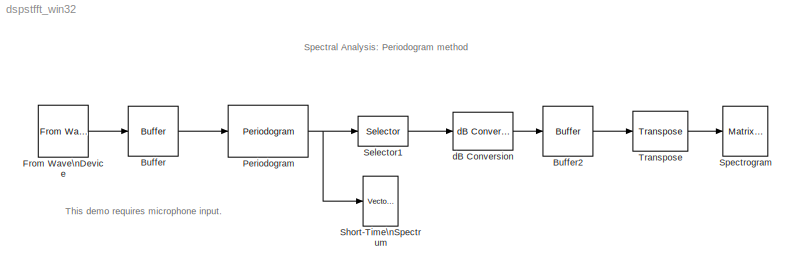
MODEL dspstfft_win32
KIND model
CONFIG AbsTol = auto
CONFIG FixedStep = auto
CONFIG MaxStep = auto
CONFIG MinStep = auto
CONFIG RelTol = 1e-3
CONFIG Solver = FixedStepDiscrete
CONFIG SolverMode = Auto
CONFIG StartTime = 0.0
CONFIG StopTime = inf
BLOCK [Reference] Buffer  REF=dspbuff3/Buffer
  N = 128
  Ports = [1, 1]
  SourceBlock = dspbuff3/Buffer
  SourceType = Buffer
  V = 48
  ic = 0
BLOCK [Reference] Buffer2  REF=dspbuff3/Buffer
  N = 48
  Ports = [1, 1]
  SourceBlock = dspbuff3/Buffer
  SourceType = Buffer
  V = 46
  ic = -70
BLOCK [Reference] From Wave\nDevice  REF=dspwin32/From Wave\nDevice
  Ports = [0, 1]
  QueueDuration = 1
  SampleRate = 8000
  SampleWidth = 16
  SamplesPerFrame = 256
  SourceBlock = dspwin32/From Wave\nDevice
  SourceType = From Wave Device
  Stereo = off
  UserRate = 16000
  dType = double
  useDefaultDevice = on
BLOCK [Reference] Periodogram  REF=dspspect3/Periodogram
  Ports = [1, 1]
  Rs = 50
  ShowPortLabels = on
  SourceBlock = dspspect3/Periodogram
  SourceType = Periodogram
  beta = 5
  fftsize = 128
  inheritFFT = on
  navg = 2
  winsamp = Periodic
  wintype = Hamming
BLOCK [Selector] Selector1
  Elements = 1:64
  InputPortWidth = 128
  Ports = [1, 1]
BLOCK [Reference] Short-Time\nSpectrum  REF=dspsnks4/Vector\nScope
  AxisGrid = off
  AxisLegend = off
  AxisProperties = off
  AxisZoom = off
  DisplayProperties = off
  Domain = Frequency
  FigPos = [80 110 380 320]
  FrameNumber = off
  HorizSpan = 1
  InheritXIncr = on
  LineProperties = off
  Memory = off
  OpenScopeAtSimStart = on
  OpenScopeImmediately = off
  Ports = [1]
  ScopeProperties = on
  ShowPortLabels = off
  SourceBlock = dspsnks4/Vector\nScope
  SourceType = Vector Scope
  XIncr = 1
  XLabel = Samples
  XRange = [0...Fs/2]
  XUnits = Hertz
  YLabel = Magnitude, dB
  YMax = 9.71199466608513
  YMin = -59.7576717829863
  YUnits = dB
BLOCK [Reference] Spectrogram  REF=dspsnks4/Matrix\nViewer
  AxisColorbar = on
  AxisOrigin = Lower left corner
  AxisParams = off
  AxisZoom = off
  CMapStr = jet(256)
  FigPos = [468 110 380 320]
  ImageParams = off
  Ports = [1]
  ShowPortLabels = off
  SourceBlock = dspsnks4/Matrix\nViewer
  SourceType = Matrix Viewer
  XLabel = Time Index
  YLabel = Frequency Index
  YMax = 15
  YMin = -70
  ZLabel = dB Magnitude
BLOCK [Reference] Transpose  REF=dspmtrx3/Transpose
  Hermitian = off
  Ports = [1, 1]
  SourceBlock = dspmtrx3/Transpose
  SourceType = Transpose
BLOCK [Reference] dB Conversion  REF=dspmathops/dB Conversion
  Ports = [1, 1]
  R = 1
  ShowPortLabels = on
  SourceBlock = dspmathops/dB Conversion
  SourceType = dB Conversion
  dBtype = dB
  fuzz = on
  intype = Amplitude
ANNOTATION (root): Spectral Analysis: Periodogram method\n
ANNOTATION (root): This demo requires microphone input.
LINE Buffer2:1 -> Transpose:1
LINE Buffer:1 -> Periodogram:1
LINE From Wave\nDevice:1 -> Buffer:1
NET Periodogram:1 -> Selector1:1, Short-Time\nSpectrum:1
LINE Selector1:1 -> dB Conversion:1
LINE Transpose:1 -> Spectrogram:1
LINE dB Conversion:1 -> Buffer2:1
note: NET lines group one-source signal fan-out (src -> all destinations, sorted); 1:1 wires keep LINE
